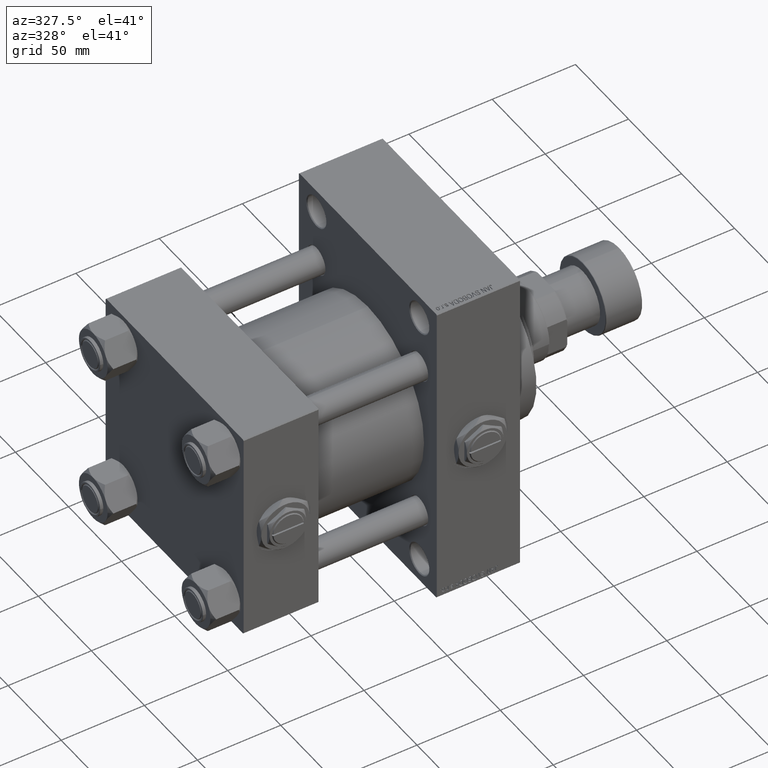
[diagram: clean part render]
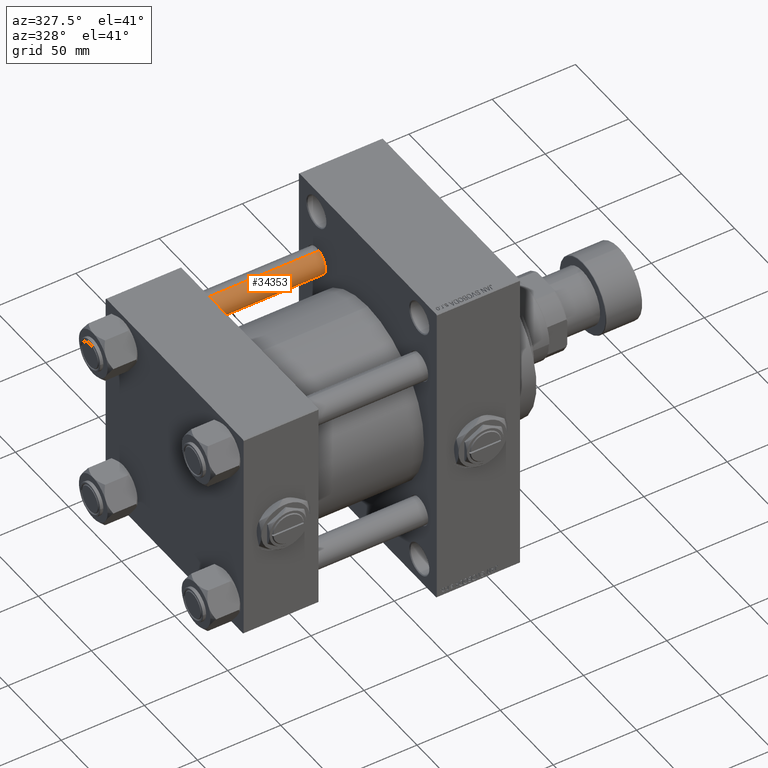
[diagram: same view with one face highlighted and labeled with its STEP entity id]
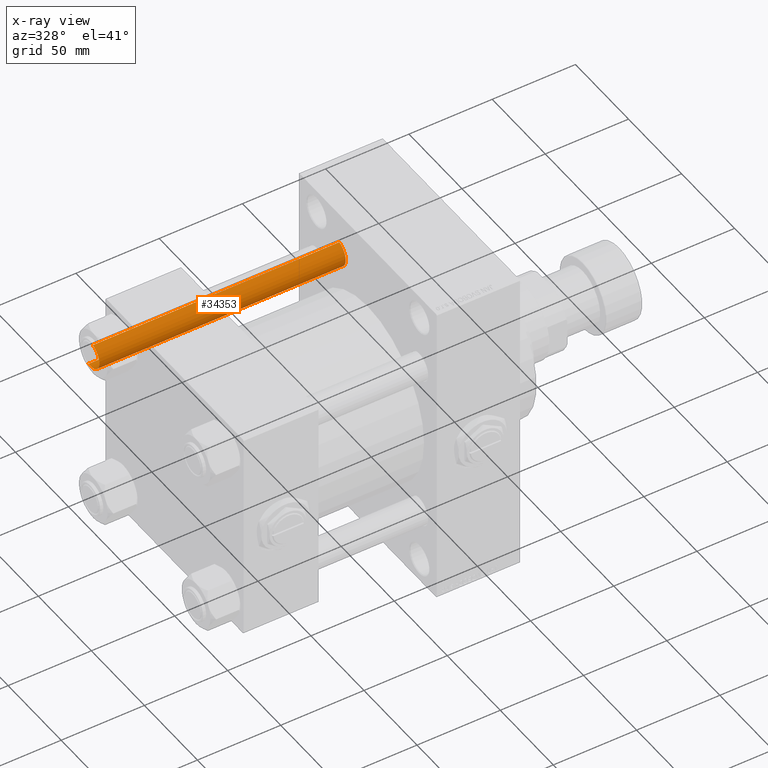
[diagram: x-ray of the same camera — body ghosted, the highlighted face saturated]
A machine part, auxiliary view. The second image highlights one B-rep face of the part: STEP entity #34353.
The next image is the same camera in x-ray: the body ghosted, the highlighted face saturated — about 0% of this face is hidden behind the body in this view.
In plain terms, the highlighted cylindrical surface (edge-blend (fillet) strip) has radius 8 mm, axis along (-1, -0, 0).
Its self-contained STEP definition (entity closure, byte-faithful):
#1662 = AXIS2_PLACEMENT_3D ( 'NONE', #48906, #29634, #10070 ) ;
#2440 = CARTESIAN_POINT ( 'NONE',  ( 8.000000000000000000, 9.797174393178825657E-16, 148.5000000000000000 ) ) ;
#3777 = VERTEX_POINT ( 'NONE', #18366 ) ;
#4587 = EDGE_CURVE ( 'NONE', #14496, #42269, #18250, .T. ) ;
#6081 = ORIENTED_EDGE ( 'NONE', *, *, #42867, .T. ) ;
#9927 = DIRECTION ( 'NONE',  ( -1.000000000000000000, 0.000000000000000000, 0.000000000000000000 ) ) ;
#10070 = DIRECTION ( 'NONE',  ( 1.000000000000000000, 0.000000000000000000, 0.000000000000000000 ) ) ;
#10532 = CARTESIAN_POINT ( 'NONE',  ( -8.000000000000000000, 0.000000000000000000, 0.5000000000000281997 ) ) ;
#10886 = ORIENTED_EDGE ( 'NONE', *, *, #23956, .T. ) ;
#12381 = DIRECTION ( 'NONE',  ( 1.000000000000000000, 0.000000000000000000, 0.000000000000000000 ) ) ;
#13233 = CYLINDRICAL_SURFACE ( 'NONE', #40404, 8.000000000000000000 ) ;
#14496 = VERTEX_POINT ( 'NONE', #2440 ) ;
#14637 = VECTOR ( 'NONE', #25129, 1000.000000000000000 ) ;
#14999 = ORIENTED_EDGE ( 'NONE', *, *, #4587, .F. ) ;
#16291 = DIRECTION ( 'NONE',  ( -0.000000000000000000, -0.000000000000000000, -1.000000000000000000 ) ) ;
#18250 = LINE ( 'NONE', #28687, #14637 ) ;
#18366 = CARTESIAN_POINT ( 'NONE',  ( -8.000000000000000000, 0.000000000000000000, 148.5000000000000000 ) ) ;
#18626 = CARTESIAN_POINT ( 'NONE',  ( 8.000000000000000000, 9.797174393178825657E-16, 0.5000000000000281997 ) ) ;
#21307 = VERTEX_POINT ( 'NONE', #10532 ) ;
#23149 = ORIENTED_EDGE ( 'NONE', *, *, #40790, .T. ) ;
#23956 = EDGE_CURVE ( 'NONE', #3777, #21307, #27252, .T. ) ;
#24053 = CARTESIAN_POINT ( 'NONE',  ( 0.000000000000000000, 0.000000000000000000, 148.5000000000000000 ) ) ;
#24555 = DIRECTION ( 'NONE',  ( 0.000000000000000000, 0.000000000000000000, -1.000000000000000000 ) ) ;
#24999 = VECTOR ( 'NONE', #16291, 1000.000000000000000 ) ;
#25129 = DIRECTION ( 'NONE',  ( -0.000000000000000000, -0.000000000000000000, -1.000000000000000000 ) ) ;
#25998 = CIRCLE ( 'NONE', #1662, 8.000000000000000000 ) ;
#27252 = LINE ( 'NONE', #42714, #24999 ) ;
#28687 = CARTESIAN_POINT ( 'NONE',  ( 8.000000000000000000, 9.797174393178825657E-16, 149.0000000000000000 ) ) ;
#29240 = DIRECTION ( 'NONE',  ( -0.000000000000000000, -0.000000000000000000, -1.000000000000000000 ) ) ;
#29634 = DIRECTION ( 'NONE',  ( -0.000000000000000000, -0.000000000000000000, 1.000000000000000000 ) ) ;
#33296 = CARTESIAN_POINT ( 'NONE',  ( 0.000000000000000000, 0.000000000000000000, 149.0000000000000000 ) ) ;
#34353 = ADVANCED_FACE ( 'NONE', ( #48021 ), #13233, .T. ) ;
#37261 = CIRCLE ( 'NONE', #46972, 8.000000000000000000 ) ;
#39401 = EDGE_LOOP ( 'NONE', ( #14999, #23149, #10886, #6081 ) ) ;
#40404 = AXIS2_PLACEMENT_3D ( 'NONE', #33296, #29240, #9927 ) ;
#40790 = EDGE_CURVE ( 'NONE', #14496, #3777, #37261, .T. ) ;
#42269 = VERTEX_POINT ( 'NONE', #18626 ) ;
#42714 = CARTESIAN_POINT ( 'NONE',  ( -8.000000000000000000, 0.000000000000000000, 149.0000000000000000 ) ) ;
#42867 = EDGE_CURVE ( 'NONE', #21307, #42269, #25998, .T. ) ;
#46972 = AXIS2_PLACEMENT_3D ( 'NONE', #24053, #24555, #12381 ) ;
#48021 = FACE_OUTER_BOUND ( 'NONE', #39401, .T. ) ;
#48906 = CARTESIAN_POINT ( 'NONE',  ( 0.000000000000000000, 0.000000000000000000, 0.5000000000000281997 ) ) ;